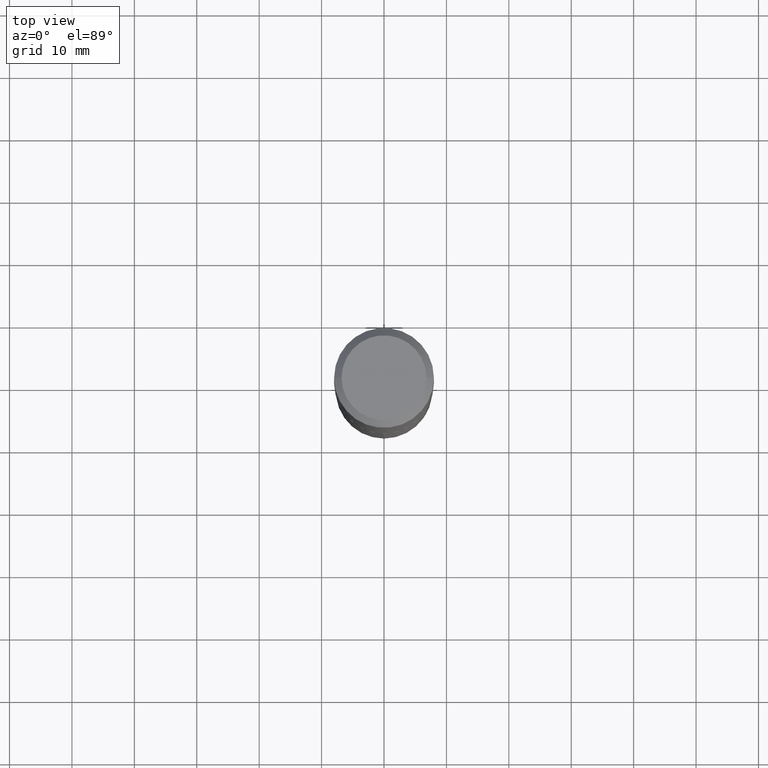
[diagram: clean part render]
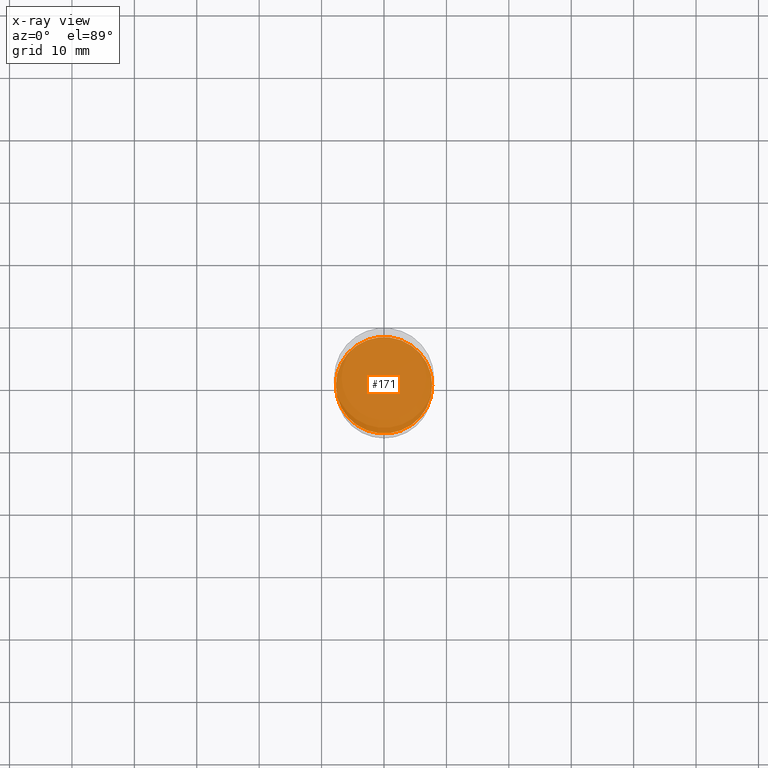
[diagram: x-ray — body ghosted, one internal face saturated and labeled with its STEP entity id]
A machine part, top view, then the same camera in x-ray: the body is ghosted and one INTERNAL B-rep face — a face not visible from any outside direction — is saturated and labeled: STEP entity #171.
In plain terms, the highlighted planar face has unit normal (-0, 0, 1).
Its self-contained STEP definition (entity closure, byte-faithful):
#6 = DIRECTION ( 'NONE',  ( 1.000000000000000000, -6.982962677686266711E-15, 0.000000000000000000 ) ) ;
#33 = CARTESIAN_POINT ( 'NONE',  ( 0.3042000000000000259, -1.181517285064519527E-14, -2.775599999999999845 ) ) ;
#91 = CIRCLE ( 'NONE', #402, 0.3042000000000000259 ) ;
#95 = DIRECTION ( 'NONE',  ( -2.445468806185136597E-29, 3.491481338843145583E-15, 1.000000000000000000 ) ) ;
#101 = ORIENTED_EDGE ( 'NONE', *, *, #449, .F. ) ;
#124 = DIRECTION ( 'NONE',  ( 1.000000000000000000, -6.982962677686265922E-15, 4.876176775795935793E-29 ) ) ;
#165 = CARTESIAN_POINT ( 'NONE',  ( 6.787643218447464969E-29, -9.690955604093032420E-15, -2.775599999999999845 ) ) ;
#170 = DIRECTION ( 'NONE',  ( 1.000000000000000000, -6.982962677686266711E-15, 0.000000000000000000 ) ) ;
#171 = ADVANCED_FACE ( 'NONE', ( #237 ), #312, .F. ) ;
#174 = AXIS2_PLACEMENT_3D ( 'NONE', #461, #245, #124 ) ;
#177 = CARTESIAN_POINT ( 'NONE',  ( 6.787643218447464969E-29, -9.690955604093032420E-15, -2.775599999999999845 ) ) ;
#188 = EDGE_CURVE ( 'NONE', #291, #412, #224, .T. ) ;
#224 = CIRCLE ( 'NONE', #459, 0.3042000000000000259 ) ;
#237 = FACE_OUTER_BOUND ( 'NONE', #355, .T. ) ;
#245 = DIRECTION ( 'NONE',  ( -2.438088387897960049E-29, 3.491481338843145188E-15, 1.000000000000000000 ) ) ;
#256 = ORIENTED_EDGE ( 'NONE', *, *, #188, .F. ) ;
#291 = VERTEX_POINT ( 'NONE', #33 ) ;
#312 = PLANE ( 'NONE',  #174 ) ;
#329 = DIRECTION ( 'NONE',  ( -2.445468806185136597E-29, 3.491481338843145583E-15, 1.000000000000000000 ) ) ;
#355 = EDGE_LOOP ( 'NONE', ( #256, #101 ) ) ;
#401 = CARTESIAN_POINT ( 'NONE',  ( -0.3042000000000000259, -7.526835374736697058E-15, -2.775599999999999845 ) ) ;
#402 = AXIS2_PLACEMENT_3D ( 'NONE', #177, #329, #6 ) ;
#412 = VERTEX_POINT ( 'NONE', #401 ) ;
#449 = EDGE_CURVE ( 'NONE', #412, #291, #91, .T. ) ;
#459 = AXIS2_PLACEMENT_3D ( 'NONE', #165, #95, #170 ) ;
#461 = CARTESIAN_POINT ( 'NONE',  ( 6.787643218447464969E-29, -9.690955604093032420E-15, -2.775599999999999845 ) ) ;